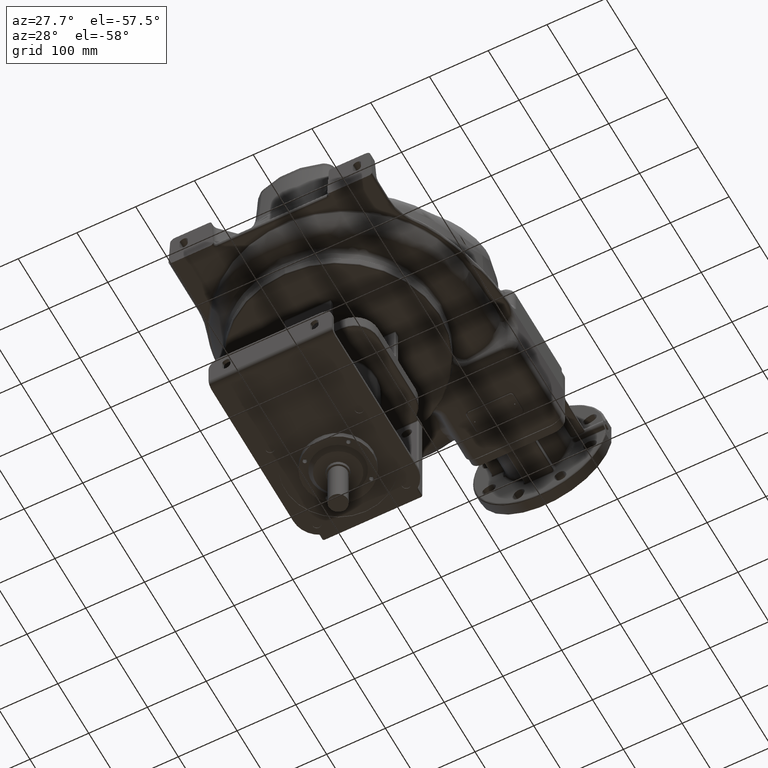
[diagram: clean part render]
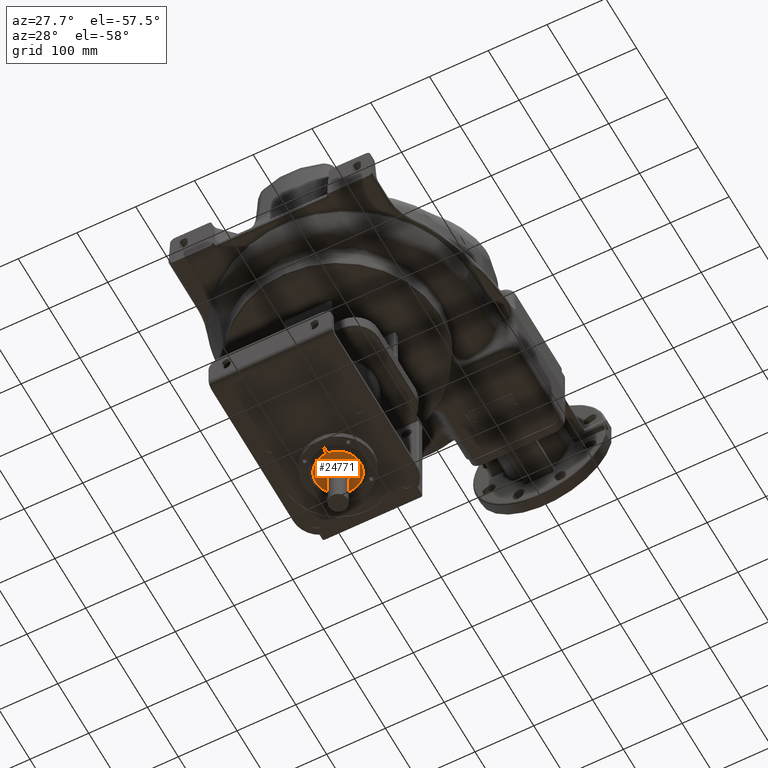
[diagram: same view with one face highlighted and labeled with its STEP entity id]
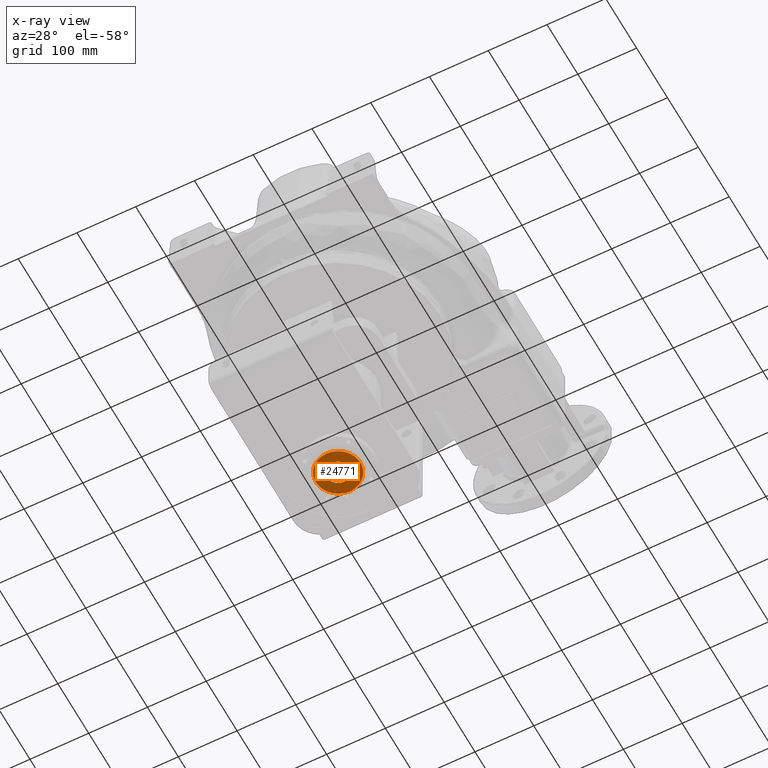
[diagram: x-ray of the same camera — body ghosted, the highlighted face saturated]
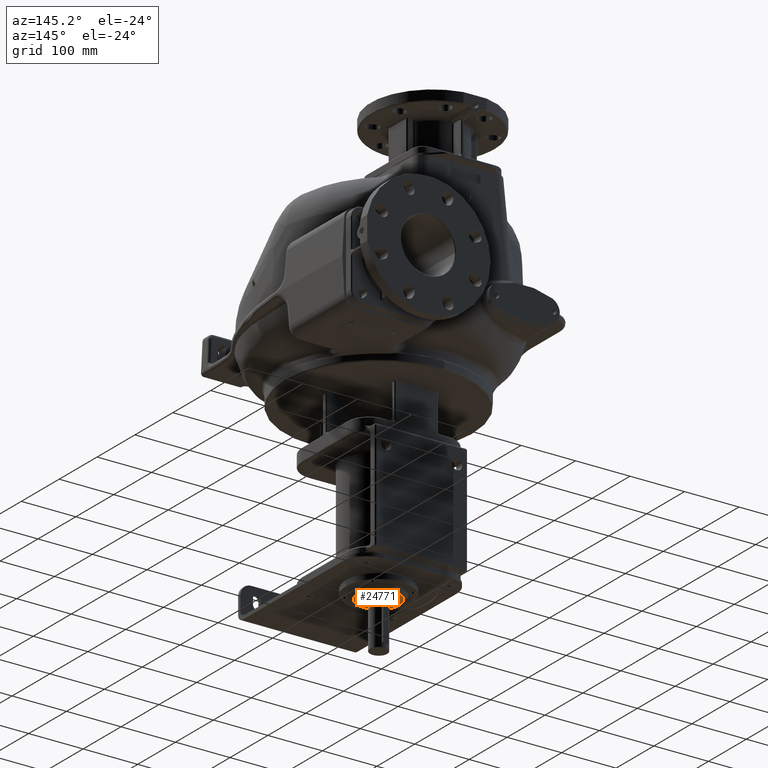
[diagram: same view with one face highlighted and labeled with its STEP entity id]
A machine part, auxiliary view. The second image highlights one B-rep face of the part: STEP entity #24771.
The next image is the same camera in x-ray: the body ghosted, the highlighted face saturated — about 0% of this face is hidden behind the body in this view.
A second angle (auxiliary view) of the same face is appended — the face is thin or edge-on in the first view.
In plain terms, the highlighted planar face has unit normal (0, 0, -1).
Its self-contained STEP definition (entity closure, byte-faithful):
#2645=CARTESIAN_POINT('',(1.9E1,2.2E2,-4.455E2));
#2646=DIRECTION('',(0.E0,0.E0,-1.E0));
#2647=DIRECTION('',(0.E0,-1.E0,0.E0));
#2648=AXIS2_PLACEMENT_3D('',#2645,#2646,#2647);
#2650=CARTESIAN_POINT('',(1.9E1,2.2E2,-4.455E2));
#2651=DIRECTION('',(0.E0,0.E0,-1.E0));
#2652=DIRECTION('',(0.E0,1.E0,0.E0));
#2653=AXIS2_PLACEMENT_3D('',#2650,#2651,#2652);
#2655=CARTESIAN_POINT('',(1.9E1,2.2E2,-4.455E2));
#2656=DIRECTION('',(0.E0,0.E0,1.E0));
#2657=DIRECTION('',(-1.E0,0.E0,0.E0));
#2658=AXIS2_PLACEMENT_3D('',#2655,#2656,#2657);
#2660=CARTESIAN_POINT('',(1.9E1,2.2E2,-4.455E2));
#2661=DIRECTION('',(0.E0,0.E0,1.E0));
#2662=DIRECTION('',(1.E0,0.E0,0.E0));
#2663=AXIS2_PLACEMENT_3D('',#2660,#2661,#2662);
#19698=CARTESIAN_POINT('',(3.8E1,2.2E2,-4.455E2));
#19699=CARTESIAN_POINT('',(0.E0,2.2E2,-4.455E2));
#19700=VERTEX_POINT('',#19698);
#19701=VERTEX_POINT('',#19699);
#19710=CARTESIAN_POINT('',(1.9E1,1.82E2,-4.455E2));
#19711=CARTESIAN_POINT('',(1.9E1,2.58E2,-4.455E2));
#19712=VERTEX_POINT('',#19710);
#19713=VERTEX_POINT('',#19711);
#24755=CARTESIAN_POINT('',(1.9E1,2.2E2,-4.455E2));
#24756=DIRECTION('',(0.E0,0.E0,-1.E0));
#24757=DIRECTION('',(0.E0,1.E0,0.E0));
#24758=AXIS2_PLACEMENT_3D('',#24755,#24756,#24757);
#24759=PLANE('',#24758);
#24760=ORIENTED_EDGE('',*,*,#24745,.F.);
#24762=ORIENTED_EDGE('',*,*,#24761,.F.);
#24763=EDGE_LOOP('',(#24760,#24762));
#24764=FACE_OUTER_BOUND('',#24763,.F.);
#24766=ORIENTED_EDGE('',*,*,#24765,.F.);
#24768=ORIENTED_EDGE('',*,*,#24767,.F.);
#24769=EDGE_LOOP('',(#24766,#24768));
#24770=FACE_BOUND('',#24769,.F.);
#24771=ADVANCED_FACE('',(#24764,#24770),#24759,.T.);
#2649=CIRCLE('',#2648,3.8E1);
#2654=CIRCLE('',#2653,3.8E1);
#2659=CIRCLE('',#2658,1.9E1);
#2664=CIRCLE('',#2663,1.9E1);
#24745=EDGE_CURVE('',#19712,#19713,#2649,.T.);
#24761=EDGE_CURVE('',#19713,#19712,#2654,.T.);
#24765=EDGE_CURVE('',#19701,#19700,#2659,.T.);
#24767=EDGE_CURVE('',#19700,#19701,#2664,.T.);